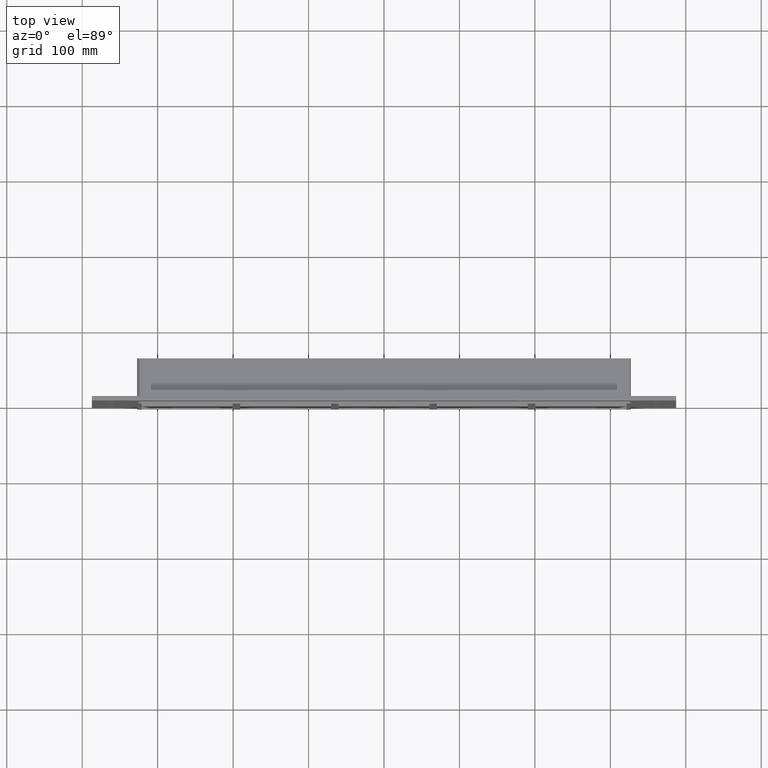
[diagram: clean part render]
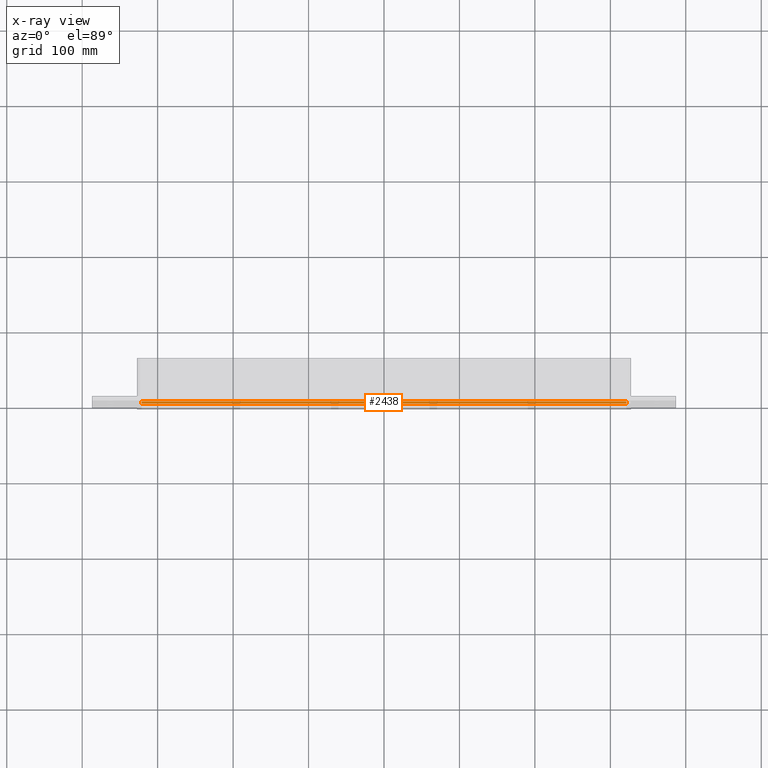
[diagram: x-ray — body ghosted, one internal face saturated and labeled with its STEP entity id]
A machine part, top view, then the same camera in x-ray: the body is ghosted and one INTERNAL B-rep face — a face not visible from any outside direction — is saturated and labeled: STEP entity #2438.
In plain terms, the highlighted planar face has unit normal (0, 0, 1).
Its self-contained STEP definition (entity closure, byte-faithful):
#1070=CARTESIAN_POINT('',(321.24999999999994,-3.0,230.00000000000006));
#1071=VERTEX_POINT('',#1070);
#1079=CARTESIAN_POINT('',(-321.25,-3.0,230.00000000000006));
#1080=VERTEX_POINT('',#1079);
#1081=CARTESIAN_POINT('',(321.25,-3.0,230.00000000000006));
#1082=DIRECTION('',(-1.0,0.0,0.0));
#1083=VECTOR('',#1082,642.5);
#1084=LINE('',#1081,#1083);
#1085=EDGE_CURVE('',#1071,#1080,#1084,.T.);
#2212=CARTESIAN_POINT('',(-321.25,0.0,230.00000000000006));
#2213=VERTEX_POINT('',#2212);
#2221=CARTESIAN_POINT('',(321.25,0.0,230.00000000000006));
#2222=VERTEX_POINT('',#2221);
#2223=CARTESIAN_POINT('',(321.25,0.0,230.00000000000006));
#2224=DIRECTION('',(-1.0,0.0,0.0));
#2225=VECTOR('',#2224,642.5);
#2226=LINE('',#2223,#2225);
#2227=EDGE_CURVE('',#2222,#2213,#2226,.T.);
#2350=CARTESIAN_POINT('',(321.25,0.0,230.00000000000006));
#2351=DIRECTION('',(0.0,-1.0,0.0));
#2352=VECTOR('',#2351,3.0);
#2353=LINE('',#2350,#2352);
#2354=EDGE_CURVE('',#2222,#1071,#2353,.T.);
#2422=CARTESIAN_POINT('',(-327.25,0.0,230.00000000000006));
#2423=DIRECTION('',(0.0,0.0,1.0));
#2424=DIRECTION('',(1.0,0.0,0.0));
#2425=AXIS2_PLACEMENT_3D('',#2422,#2423,#2424);
#2426=PLANE('',#2425);
#2427=ORIENTED_EDGE('',*,*,#2227,.T.);
#2428=CARTESIAN_POINT('',(-321.25,-3.0,230.00000000000006));
#2429=DIRECTION('',(0.0,1.0,0.0));
#2430=VECTOR('',#2429,3.0);
#2431=LINE('',#2428,#2430);
#2432=EDGE_CURVE('',#1080,#2213,#2431,.T.);
#2433=ORIENTED_EDGE('',*,*,#2432,.F.);
#2434=ORIENTED_EDGE('',*,*,#1085,.F.);
#2435=ORIENTED_EDGE('',*,*,#2354,.F.);
#2436=EDGE_LOOP('',(#2427,#2433,#2434,#2435));
#2437=FACE_OUTER_BOUND('',#2436,.T.);
#2438=ADVANCED_FACE('',(#2437),#2426,.T.);